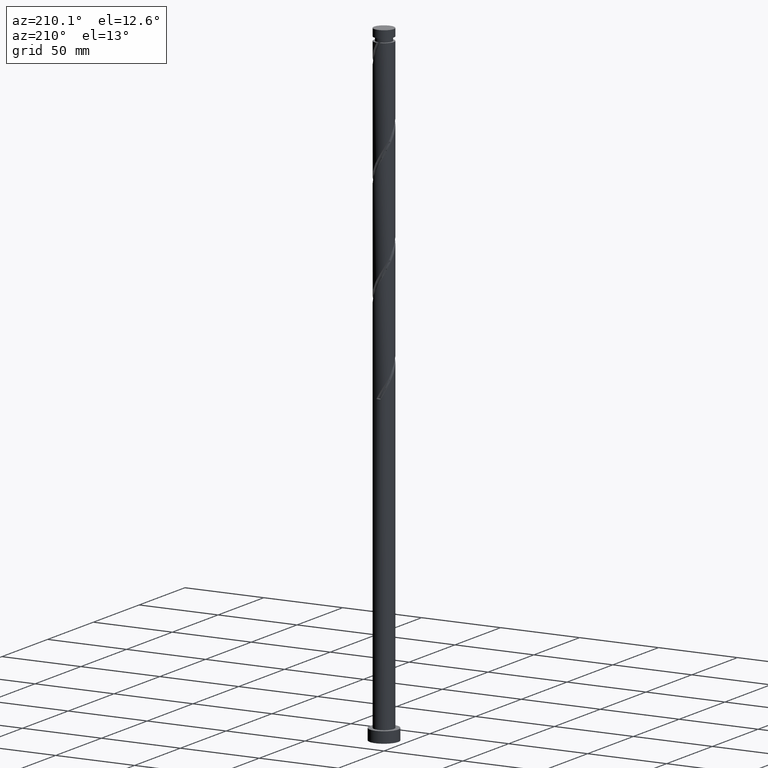
[diagram: clean part render]
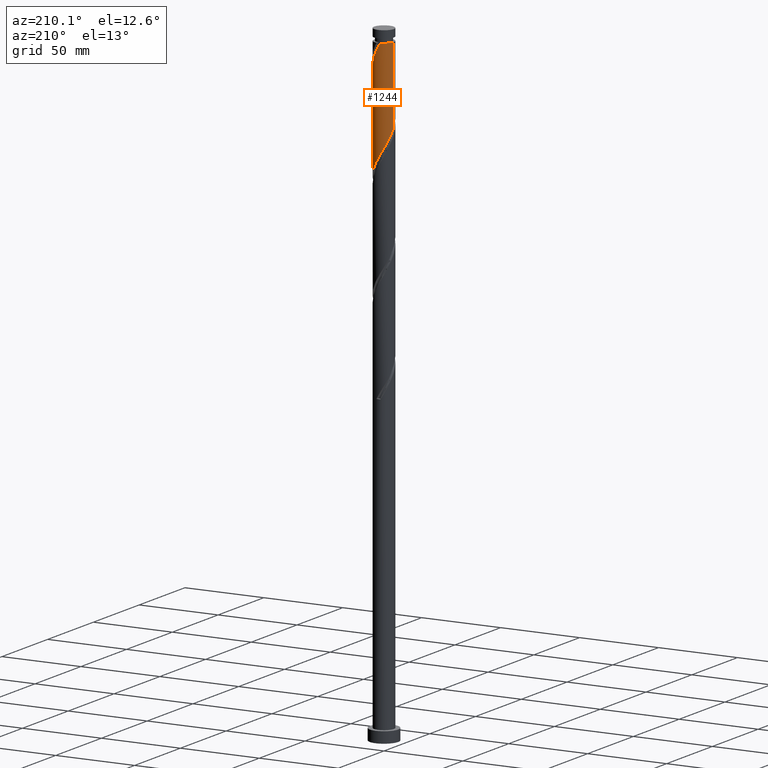
[diagram: same view with one face highlighted and labeled with its STEP entity id]
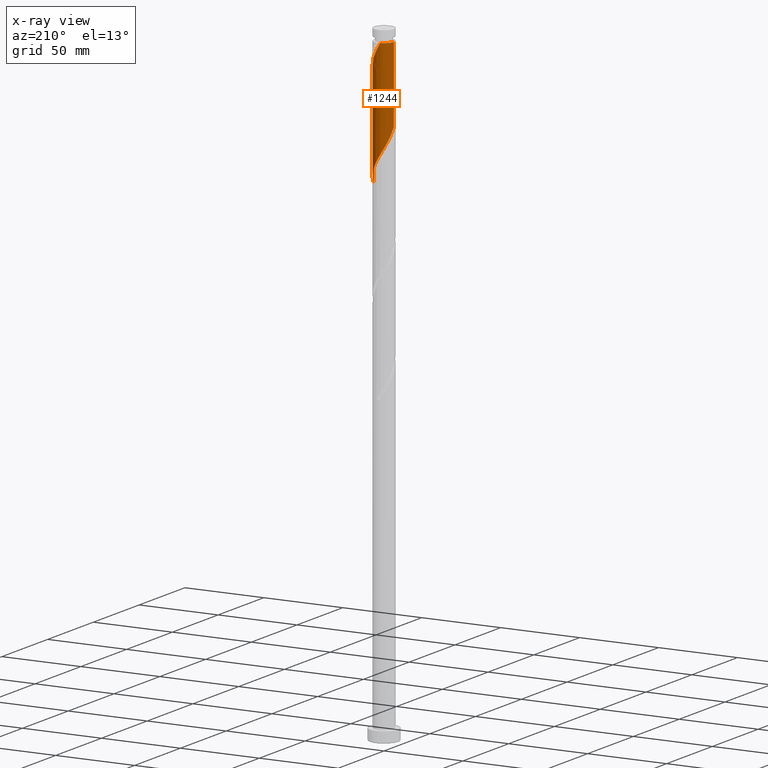
[diagram: x-ray of the same camera — body ghosted, the highlighted face saturated]
A machine part, auxiliary view. The second image highlights one B-rep face of the part: STEP entity #1244.
The next image is the same camera in x-ray: the body ghosted, the highlighted face saturated — about 0% of this face is hidden behind the body in this view.
In plain terms, the highlighted cylindrical surface (edge-blend (fillet) strip) has radius 6.25 mm, axis along (-0, -0, -1).
Its self-contained STEP definition (entity closure, byte-faithful):
#56 = CARTESIAN_POINT ( 'NONE',  ( -0.7137776319832572769, 6.243760167872227207, 329.4122202231449705 ) ) ;
#66 = CARTESIAN_POINT ( 'NONE',  ( 5.926272746371326505, 1.985394503774110309, 314.9677757787005135 ) ) ;
#76 = CARTESIAN_POINT ( 'NONE',  ( -3.191634364315941053, 5.413639222034015042, 333.8566646675894845 ) ) ;
#140 = CARTESIAN_POINT ( 'NONE',  ( 3.719541372160795945, 5.022699670574013453, 383.8566646675894845 ) ) ;
#157 = CARTESIAN_POINT ( 'NONE',  ( 5.961440974416463590, 1.877157827288001624, 377.1899980009229694 ) ) ;
#168 = CARTESIAN_POINT ( 'NONE',  ( -0.5999708553810062517, 6.255721742095069260, 391.6344424453670854 ) ) ;
#203 = AXIS2_PLACEMENT_3D ( 'NONE', #1254, #336, #1377 ) ;
#235 = CARTESIAN_POINT ( 'NONE',  ( -5.117628519970460310, 3.647450873337766630, 338.3011091120339415 ) ) ;
#245 = CARTESIAN_POINT ( 'NONE',  ( -6.250000000000002665, -4.335040471992935835E-15, 344.8709967999998298 ) ) ;
#279 = CARTESIAN_POINT ( 'NONE',  ( 6.250000000000008882, -6.278334476679388808E-16, 373.9534436462902249 ) ) ;
#297 = CARTESIAN_POINT ( 'NONE',  ( 6.250000000000002665, 0.3560858590401961843, 312.1432547760509237 ) ) ;
#298 = CARTESIAN_POINT ( 'NONE',  ( 4.682538449988057572, 4.139605496225886583, 381.6344424453672559 ) ) ;
#315 = CARTESIAN_POINT ( 'NONE',  ( 5.117628519970468304, 3.647450873337766186, 380.5233313342559995 ) ) ;
#336 = DIRECTION ( 'NONE',  ( -0.000000000000000000, -0.000000000000000000, -1.000000000000000000 ) ) ;
#358 = CYLINDRICAL_SURFACE ( 'NONE', #1210, 6.250000000000000000 ) ;
#380 = CARTESIAN_POINT ( 'NONE',  ( 4.162407600581769174, 4.708331180837495467, 320.5233313342562269 ) ) ;
#410 = VERTEX_POINT ( 'NONE', #279 ) ;
#412 = CARTESIAN_POINT ( 'NONE',  ( 1.887497737385553265, 5.994278257904940510, 324.9677757787005135 ) ) ;
#439 = VECTOR ( 'NONE', #645, 1000.000000000000000 ) ;
#461 = EDGE_LOOP ( 'NONE', ( #1216, #1156, #1366, #1530, #1418 ) ) ;
#476 =( BOUNDED_CURVE ( )  B_SPLINE_CURVE ( 2, ( #245, #1775, #988, #1481, #1327, #1951, #560, #235, #862, #1470, #1298, #76, #841, #1942, #1450, #56, #549, #1175, #1794, #412, #686, #1027, #533, #380, #998, #1616, #851, #1460, #66, #1533, #759, #297, #769 ),
 .UNSPECIFIED., .F., .T. ) 
 B_SPLINE_CURVE_WITH_KNOTS ( ( 3, 2, 2, 2, 2, 2, 2, 2, 2, 2, 2, 2, 2, 2, 2, 2, 3 ),
 ( 0.4295286012773114059, 0.4333333333333333481, 0.4416666666666666519, 0.4500000000000000111, 0.4583333333333333148, 0.4666666666666666741, 0.4749999999999999778, 0.4833333333333333370, 0.4916666666666666408, 0.5000000000000000000, 0.5083333333333333037, 0.5166666666666667185, 0.5250000000000000222, 0.5333333333333333259, 0.5416666666666666297, 0.5500000000000000444, 0.5545286012773115170 ),
 .UNSPECIFIED. ) 
 CURVE ( )  GEOMETRIC_REPRESENTATION_ITEM ( )  RATIONAL_B_SPLINE_CURVE ( ( 0.9066196499552214849, 0.9068171577856342092, 0.9090909090909331525, 0.9041108139711813152, 0.9090909090909331525, 0.9041108139711813152, 0.9090909090909331525, 0.9041108139711813152, 0.9090909090909331525, 0.9041108139711813152, 0.9090909090909331525, 0.9041108139711813152, 0.9090909090909331525, 0.9041108139711813152, 0.9090909090909331525, 0.9041108139711813152, 0.9090909090909331525, 0.9041108139711813152, 0.9090909090909331525, 0.9041108139711813152, 0.9090909090909331525, 0.9041108139711813152, 0.9090909090909331525, 0.9041108139711813152, 0.9090909090909331525, 0.9041108139711813152, 0.9090909090909331525, 0.9041108139711813152, 0.9090909090909331525, 0.9041108139711813152, 0.9090909090909331525, 0.9063845652764802585, 0.9066196499552214849 ) ) 
 REPRESENTATION_ITEM ( '' )  );
#533 = CARTESIAN_POINT ( 'NONE',  ( 3.627469755814541230, 5.089593615471748933, 321.6344424453671422 ) ) ;
#549 = CARTESIAN_POINT ( 'NONE',  ( -0.05690338830112281338, 6.249740954983644237, 328.3011091120338847 ) ) ;
#560 = CARTESIAN_POINT ( 'NONE',  ( -5.440886128238414443, 3.075590697661639172, 339.4122202231449137 ) ) ;
#612 = LINE ( 'NONE', #1245, #1239 ) ;
#622 = DIRECTION ( 'NONE',  ( -0.000000000000000000, -0.000000000000000000, -1.000000000000000000 ) ) ;
#633 = CARTESIAN_POINT ( 'NONE',  ( 4.247448380005641511, 4.631760119114008312, 382.7455535564783418 ) ) ;
#642 = CARTESIAN_POINT ( 'NONE',  ( 0.7137776319832607186, 6.243760167872234312, 389.4122202231449705 ) ) ;
#645 = DIRECTION ( 'NONE',  ( -0.000000000000000000, -0.000000000000000000, -1.000000000000000000 ) ) ;
#686 = CARTESIAN_POINT ( 'NONE',  ( 2.490014824216431499, 5.732567154005474563, 323.8566646675893708 ) ) ;
#698 = CARTESIAN_POINT ( 'NONE',  ( 0.000000000000000000, 0.000000000000000000, 400.0000000000000000 ) ) ;
#706 = EDGE_CURVE ( 'NONE', #410, #1663, #1111, .T. ) ;
#759 = CARTESIAN_POINT ( 'NONE',  ( 6.209556196377216786, 0.7098674834314656623, 312.7455535564782849 ) ) ;
#766 = CIRCLE ( 'NONE', #203, 6.249999999999963585 ) ;
#769 = CARTESIAN_POINT ( 'NONE',  ( 6.250000000000003553, 6.009262999107450825E-15, 311.5376634666665154 ) ) ;
#770 = CARTESIAN_POINT ( 'NONE',  ( 0.05690338830112708080, 6.249740954983652230, 390.5233313342561132 ) ) ;
#809 = CARTESIAN_POINT ( 'NONE',  ( 5.764143736506378346, 2.503730521985510382, 378.3011091120338847 ) ) ;
#841 = CARTESIAN_POINT ( 'NONE',  ( -2.593982488030357025, 5.686277767731000132, 332.7455535564783986 ) ) ;
#851 = CARTESIAN_POINT ( 'NONE',  ( 5.383982739937292372, 3.174150257322000623, 317.1899980009227420 ) ) ;
#862 = CARTESIAN_POINT ( 'NONE',  ( -4.682538449988047802, 4.139605496225884806, 337.1899980009227988 ) ) ;
#919 = EDGE_CURVE ( 'NONE', #1712, #1663, #476, .T. ) ;
#921 = CARTESIAN_POINT ( 'NONE',  ( 2.593982488030362354, 5.686277767731009014, 386.0788868898117130 ) ) ;
#988 = CARTESIAN_POINT ( 'NONE',  ( -6.221452243844894703, 0.5966841522592485347, 343.8566646675893708 ) ) ;
#998 = CARTESIAN_POINT ( 'NONE',  ( 4.606386852552440736, 4.224180413362104147, 319.4122202231449137 ) ) ;
#1027 = CARTESIAN_POINT ( 'NONE',  ( 3.092531911047311954, 5.470856050106012169, 322.7455535564783418 ) ) ;
#1066 = CARTESIAN_POINT ( 'NONE',  ( -6.250000000000002665, -4.335040471992935835E-15, 344.8709967999998298 ) ) ;
#1111 = LINE ( 'NONE', #1121, #439 ) ;
#1121 = CARTESIAN_POINT ( 'NONE',  ( 6.250000000000000000, 7.654042494670957606E-16, 400.0000000000000000 ) ) ;
#1156 = ORIENTED_EDGE ( 'NONE', *, *, #706, .T. ) ;
#1175 = CARTESIAN_POINT ( 'NONE',  ( 0.5999708553810115808, 6.255721742095059490, 327.1899980009227420 ) ) ;
#1210 = AXIS2_PLACEMENT_3D ( 'NONE', #698, #1898, #1277 ) ;
#1216 = ORIENTED_EDGE ( 'NONE', *, *, #1754, .F. ) ;
#1239 = VECTOR ( 'NONE', #622, 1000.000000000000000 ) ;
#1240 = VERTEX_POINT ( 'NONE', #1440 ) ;
#1244 = ADVANCED_FACE ( 'NONE', ( #1451 ), #358, .T. ) ;
#1245 = CARTESIAN_POINT ( 'NONE',  ( -6.250000000000000000, 0.000000000000000000, 400.0000000000000000 ) ) ;
#1254 = CARTESIAN_POINT ( 'NONE',  ( 0.000000000000000000, 0.000000000000000000, 392.7455535564783418 ) ) ;
#1277 = DIRECTION ( 'NONE',  ( -1.000000000000000000, 0.000000000000000000, 0.000000000000000000 ) ) ;
#1298 = CARTESIAN_POINT ( 'NONE',  ( -3.719541372160786619, 5.022699670574008124, 334.9677757787005135 ) ) ;
#1327 = CARTESIAN_POINT ( 'NONE',  ( -5.961440974416452931, 1.877157827288003622, 341.6344424453671991 ) ) ;
#1366 = ORIENTED_EDGE ( 'NONE', *, *, #919, .F. ) ;
#1377 = DIRECTION ( 'NONE',  ( -1.000000000000000000, 0.000000000000000000, 0.000000000000000000 ) ) ;
#1406 = CARTESIAN_POINT ( 'NONE',  ( 1.355054121864022187, 6.101338240650115097, 388.3011091120339984 ) ) ;
#1417 = CARTESIAN_POINT ( 'NONE',  ( 5.440886128238424213, 3.075590697661642281, 379.4122202231451979 ) ) ;
#1418 = ORIENTED_EDGE ( 'NONE', *, *, #1659, .T. ) ;
#1440 = CARTESIAN_POINT ( 'NONE',  ( -1.243734296383243398, 6.125000000000002665, 392.7455535564782281 ) ) ;
#1450 = CARTESIAN_POINT ( 'NONE',  ( -1.355054121864014194, 6.101338240650104439, 330.5233313342562269 ) ) ;
#1451 = FACE_OUTER_BOUND ( 'NONE', #461, .T. ) ;
#1460 = CARTESIAN_POINT ( 'NONE',  ( 5.717599375351473334, 2.608270868757292860, 316.0788868898115993 ) ) ;
#1470 = CARTESIAN_POINT ( 'NONE',  ( -4.247448380005636182, 4.631760119114005647, 336.0788868898117130 ) ) ;
#1481 = CARTESIAN_POINT ( 'NONE',  ( -6.158738212326538175, 1.250585132590492643, 342.7455535564783986 ) ) ;
#1530 = ORIENTED_EDGE ( 'NONE', *, *, #1694, .F. ) ;
#1533 = CARTESIAN_POINT ( 'NONE',  ( 6.134946117391183229, 1.362518138790934419, 313.8566646675894845 ) ) ;
#1554 = CARTESIAN_POINT ( 'NONE',  ( -6.249999999999963585, 0.000000000000000000, 392.7455535564783418 ) ) ;
#1574 = CARTESIAN_POINT ( 'NONE',  ( 6.250000000000007994, 0.2990249955422023542, 374.4619921718542628 ) ) ;
#1616 = CARTESIAN_POINT ( 'NONE',  ( 5.050366104523114963, 3.740029645886711052, 318.3011091120339984 ) ) ;
#1659 = EDGE_CURVE ( 'NONE', #1748, #1240, #766, .T. ) ;
#1663 = VERTEX_POINT ( 'NONE', #1687 ) ;
#1687 = CARTESIAN_POINT ( 'NONE',  ( 6.250000000000003553, 6.009262999107450825E-15, 311.5376634666665154 ) ) ;
#1694 = EDGE_CURVE ( 'NONE', #1748, #1712, #612, .T. ) ;
#1712 = VERTEX_POINT ( 'NONE', #1066 ) ;
#1724 = CARTESIAN_POINT ( 'NONE',  ( 3.191634364315950823, 5.413639222034017706, 384.9677757787005135 ) ) ;
#1748 = VERTEX_POINT ( 'NONE', #1554 ) ;
#1754 = EDGE_CURVE ( 'NONE', #410, #1240, #1802, .T. ) ;
#1775 = CARTESIAN_POINT ( 'NONE',  ( -6.250000000000001776, 0.2990249955421839245, 344.3624482744357920 ) ) ;
#1794 = CARTESIAN_POINT ( 'NONE',  ( 1.243734296383280924, 6.124999999999998224, 326.0788868898115425 ) ) ;
#1802 =( BOUNDED_CURVE ( )  B_SPLINE_CURVE ( 2, ( #2015, #1574, #2005, #1852, #157, #809, #1417, #315, #298, #633, #140, #1724, #921, #1873, #1406, #642, #770, #168, #1997 ),
 .UNSPECIFIED., .F., .T. ) 
 B_SPLINE_CURVE_WITH_KNOTS ( ( 3, 2, 2, 2, 2, 2, 2, 2, 2, 3 ),
 ( 0.6795286012773117390, 0.6833333333333333481, 0.6916666666666666519, 0.6999999999999999556, 0.7083333333333332593, 0.7166666666666666741, 0.7249999999999999778, 0.7333333333333333925, 0.7416666666666666963, 0.7500000000000000000 ),
 .UNSPECIFIED. ) 
 CURVE ( )  GEOMETRIC_REPRESENTATION_ITEM ( )  RATIONAL_B_SPLINE_CURVE ( ( 0.9066196499552267030, 0.9068171577856395382, 0.9090909090909382595, 0.9041108139711866443, 0.9090909090909382595, 0.9041108139711866443, 0.9090909090909382595, 0.9041108139711866443, 0.9090909090909382595, 0.9041108139711866443, 0.9090909090909382595, 0.9041108139711866443, 0.9090909090909382595, 0.9041108139711866443, 0.9090909090909382595, 0.9041108139711866443, 0.9090909090909382595, 0.9041108139711866443, 0.9090909090909382595 ) ) 
 REPRESENTATION_ITEM ( '' )  );
#1852 = CARTESIAN_POINT ( 'NONE',  ( 6.158738212326547057, 1.250585132590491755, 376.0788868898116561 ) ) ;
#1873 = CARTESIAN_POINT ( 'NONE',  ( 1.996330611744778771, 5.958916313427994993, 387.1899980009228557 ) ) ;
#1898 = DIRECTION ( 'NONE',  ( -0.000000000000000000, -0.000000000000000000, -1.000000000000000000 ) ) ;
#1942 = CARTESIAN_POINT ( 'NONE',  ( -1.996330611744771666, 5.958916313427988776, 331.6344424453672559 ) ) ;
#1951 = CARTESIAN_POINT ( 'NONE',  ( -5.764143736506368576, 2.503730521985514379, 340.5233313342561132 ) ) ;
#1997 = CARTESIAN_POINT ( 'NONE',  ( -1.243734296383243398, 6.125000000000002665, 392.7455535564781712 ) ) ;
#2005 = CARTESIAN_POINT ( 'NONE',  ( 6.221452243844905361, 0.5966841522592428726, 374.9677757787006840 ) ) ;
#2015 = CARTESIAN_POINT ( 'NONE',  ( 6.250000000000008882, -6.278334476679388808E-16, 373.9534436462902249 ) ) ;